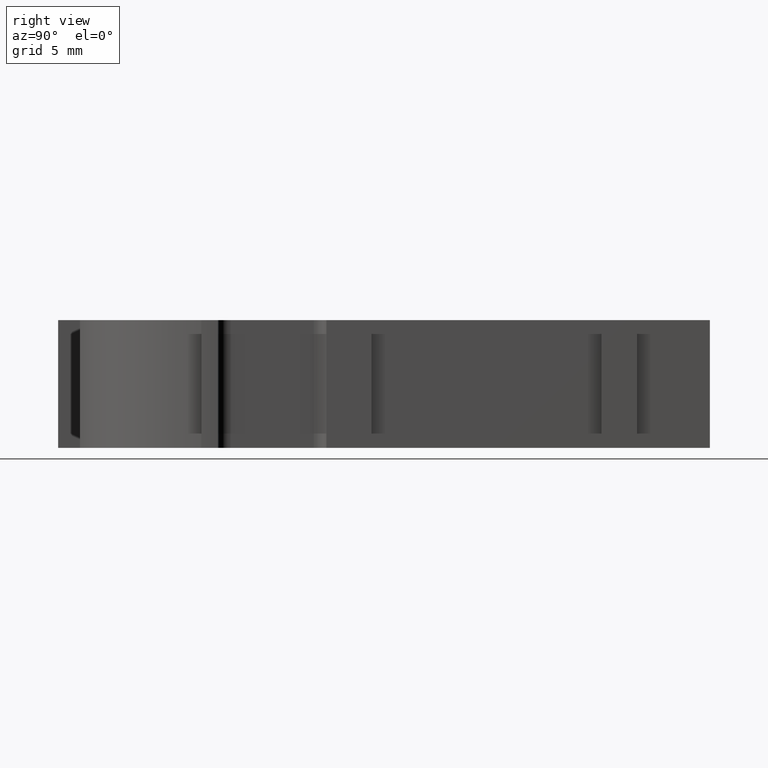
[diagram: clean part render]
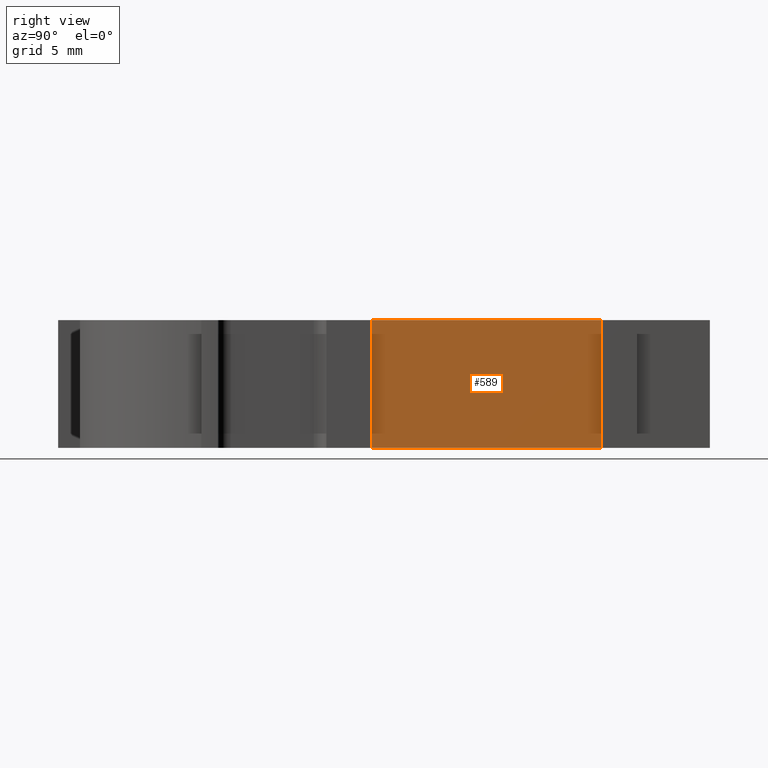
[diagram: same view with one face highlighted and labeled with its STEP entity id]
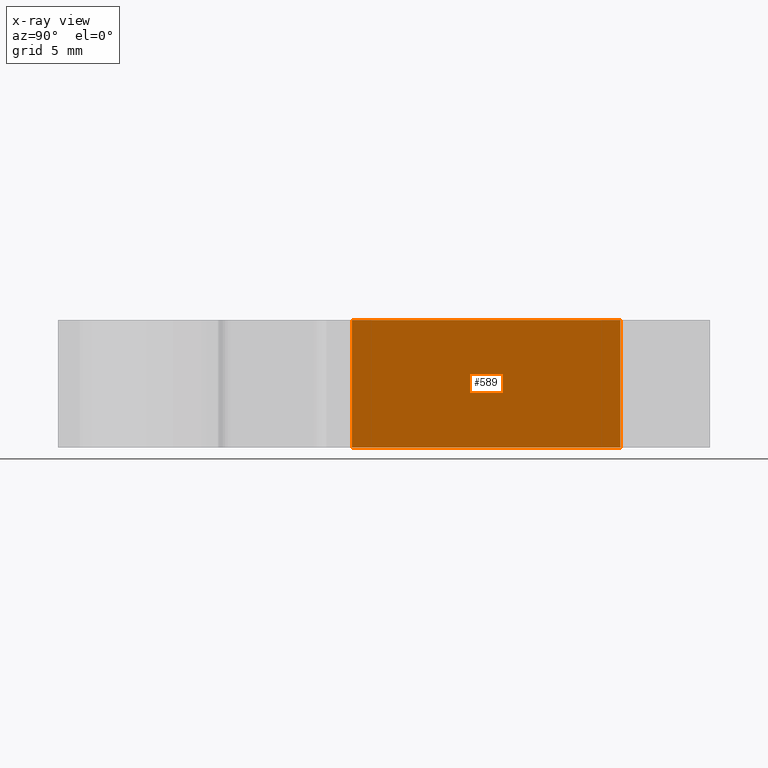
[diagram: x-ray of the same camera — body ghosted, the highlighted face saturated]
A machine part, right view. The second image highlights one B-rep face of the part: STEP entity #589.
The next image is the same camera in x-ray: the body ghosted, the highlighted face saturated — about 0% of this face is hidden behind the body in this view.
In plain terms, the highlighted planar face has unit normal (1, 0, 0).
Its self-contained STEP definition (entity closure, byte-faithful):
#53=FACE_OUTER_BOUND('',#83,.T.);
#83=EDGE_LOOP('',(#505,#506,#507,#508));
#104=LINE('',#835,#176);
#136=LINE('',#909,#208);
#157=LINE('',#954,#229);
#158=LINE('',#956,#230);
#176=VECTOR('',#668,21.);
#208=VECTOR('',#720,21.);
#229=VECTOR('',#773,10.);
#230=VECTOR('',#776,10.);
#251=VERTEX_POINT('',#832);
#252=VERTEX_POINT('',#834);
#283=VERTEX_POINT('',#906);
#284=VERTEX_POINT('',#908);
#308=EDGE_CURVE('',#252,#251,#104,.T.);
#346=EDGE_CURVE('',#284,#283,#136,.T.);
#369=EDGE_CURVE('',#283,#252,#157,.T.);
#370=EDGE_CURVE('',#284,#251,#158,.T.);
#505=ORIENTED_EDGE('',*,*,#308,.T.);
#506=ORIENTED_EDGE('',*,*,#370,.F.);
#507=ORIENTED_EDGE('',*,*,#346,.T.);
#508=ORIENTED_EDGE('',*,*,#369,.T.);
#560=PLANE('',#633);
#589=ADVANCED_FACE('',(#53),#560,.T.);
#633=AXIS2_PLACEMENT_3D('',#955,#774,#775);
#668=DIRECTION('',(5.55111512312578E-16,-1.,0.));
#720=DIRECTION('',(-5.55111512312578E-16,1.,0.));
#773=DIRECTION('',(0.,0.,1.));
#774=DIRECTION('center_axis',(1.,5.55111512312578E-16,0.));
#775=DIRECTION('ref_axis',(0.,0.,-1.));
#776=DIRECTION('',(0.,0.,1.));
#832=CARTESIAN_POINT('',(1.8,19.5,5.));
#834=CARTESIAN_POINT('',(1.79999999999999,40.5,5.));
#835=CARTESIAN_POINT('',(1.8,19.5,5.));
#906=CARTESIAN_POINT('',(1.79999999999999,40.5,-5.));
#908=CARTESIAN_POINT('',(1.8,19.5,-5.));
#909=CARTESIAN_POINT('',(1.8,19.5,-5.));
#954=CARTESIAN_POINT('',(1.79999999999999,40.5,0.));
#955=CARTESIAN_POINT('Origin',(1.79999999999999,40.5,0.));
#956=CARTESIAN_POINT('',(1.8,19.5,0.));